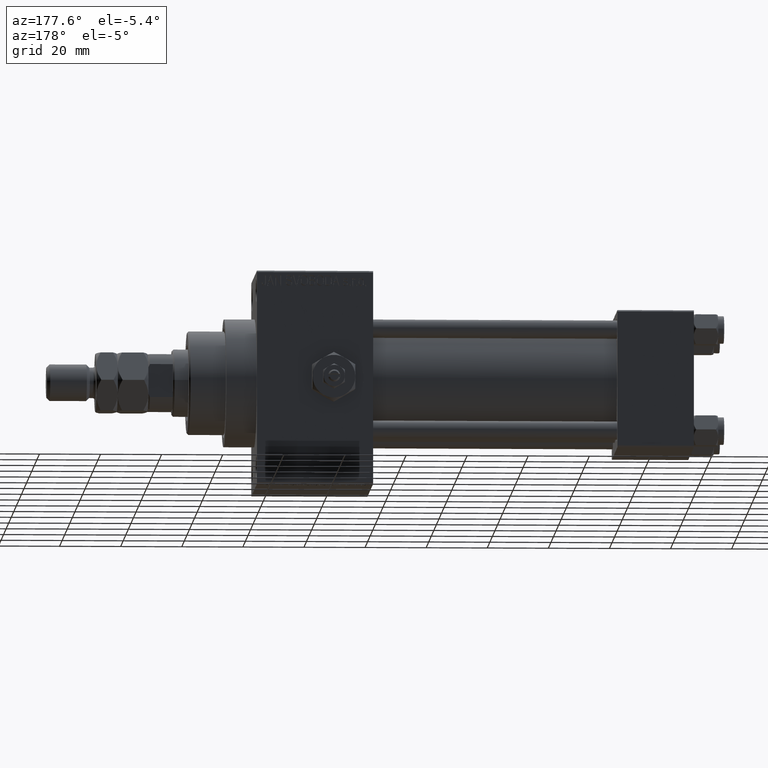
[diagram: clean part render]
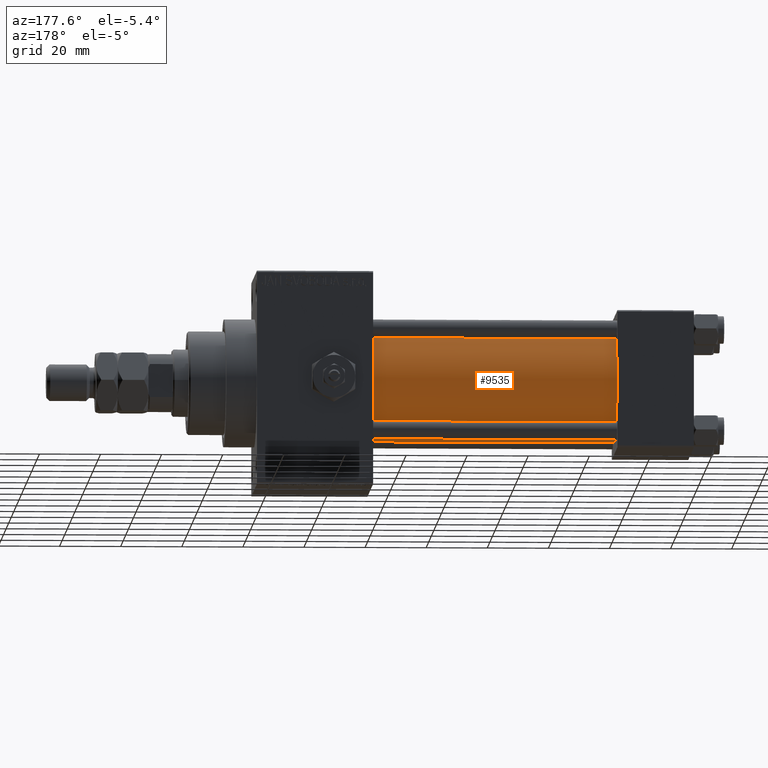
[diagram: same view with one face highlighted and labeled with its STEP entity id]
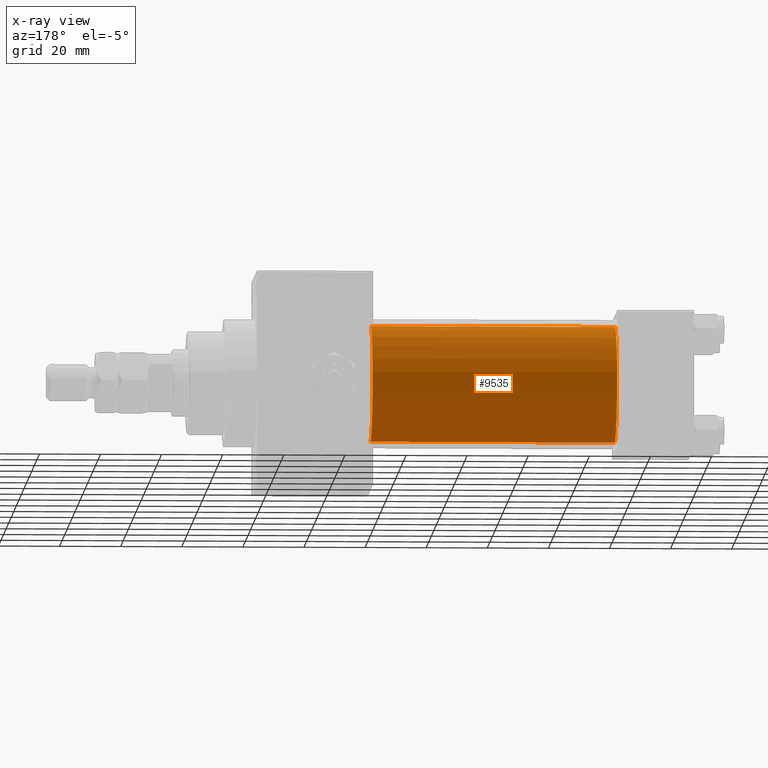
[diagram: x-ray of the same camera — body ghosted, the highlighted face saturated]
A machine part, auxiliary view. The second image highlights one B-rep face of the part: STEP entity #9535.
The next image is the same camera in x-ray: the body ghosted, the highlighted face saturated — about 0% of this face is hidden behind the body in this view.
In plain terms, the highlighted cylindrical surface (partial cylindrical patch) has radius 19 mm, axis along (-1, -0, -0).
Its self-contained STEP definition (entity closure, byte-faithful):
#435 = VECTOR ( 'NONE', #12409, 1000.000000000000000 ) ;
#1501 = CARTESIAN_POINT ( 'NONE',  ( 24.99999999999999289, -2.602085213965210642E-15, 0.000000000000000000 ) ) ;
#1876 = DIRECTION ( 'NONE',  ( -1.000000000000000000, -0.000000000000000000, -0.000000000000000000 ) ) ;
#2096 = VECTOR ( 'NONE', #46099, 1000.000000000000000 ) ;
#2854 = DIRECTION ( 'NONE',  ( 0.000000000000000000, 0.000000000000000000, -1.000000000000000000 ) ) ;
#4577 = VERTEX_POINT ( 'NONE', #18606 ) ;
#6730 = DIRECTION ( 'NONE',  ( 1.000000000000000000, -0.000000000000000000, 0.000000000000000000 ) ) ;
#7297 = ORIENTED_EDGE ( 'NONE', *, *, #9204, .T. ) ;
#8046 = AXIS2_PLACEMENT_3D ( 'NONE', #36677, #1876, #37427 ) ;
#9204 = EDGE_CURVE ( 'NONE', #34321, #42097, #13688, .T. ) ;
#9461 = EDGE_CURVE ( 'NONE', #4577, #32214, #46145, .T. ) ;
#9535 = ADVANCED_FACE ( 'NONE', ( #41730 ), #45284, .T. ) ;
#9698 = AXIS2_PLACEMENT_3D ( 'NONE', #33099, #18081, #2854 ) ;
#12409 = DIRECTION ( 'NONE',  ( -1.000000000000000000, -0.000000000000000000, -0.000000000000000000 ) ) ;
#13688 = CIRCLE ( 'NONE', #46107, 19.00000000000000000 ) ;
#14215 = ORIENTED_EDGE ( 'NONE', *, *, #25497, .F. ) ;
#14886 = EDGE_LOOP ( 'NONE', ( #40622, #44072, #7297, #14215 ) ) ;
#15473 = CARTESIAN_POINT ( 'NONE',  ( 105.0000000000000142, -2.602085213965210642E-15, 19.00000000000000000 ) ) ;
#18081 = DIRECTION ( 'NONE',  ( 1.000000000000000000, 0.000000000000000000, 0.000000000000000000 ) ) ;
#18606 = CARTESIAN_POINT ( 'NONE',  ( 105.0000000000000142, -2.752562955852396712E-16, -19.00000000000000000 ) ) ;
#19283 = LINE ( 'NONE', #15473, #435 ) ;
#20944 = CARTESIAN_POINT ( 'NONE',  ( 24.99999999999999289, -2.602085213965210642E-15, 19.00000000000000000 ) ) ;
#22468 = CARTESIAN_POINT ( 'NONE',  ( 105.0000000000000142, -2.752562955852396712E-16, -19.00000000000000000 ) ) ;
#25497 = EDGE_CURVE ( 'NONE', #32214, #42097, #19283, .T. ) ;
#26278 = DIRECTION ( 'NONE',  ( 0.000000000000000000, 0.000000000000000000, 1.000000000000000000 ) ) ;
#26920 = CARTESIAN_POINT ( 'NONE',  ( 105.0000000000000142, -2.602085213965210642E-15, 19.00000000000000000 ) ) ;
#30594 = LINE ( 'NONE', #22468, #2096 ) ;
#30624 = EDGE_CURVE ( 'NONE', #4577, #34321, #30594, .T. ) ;
#32214 = VERTEX_POINT ( 'NONE', #26920 ) ;
#33099 = CARTESIAN_POINT ( 'NONE',  ( 105.0000000000000142, -2.602085213965210642E-15, 0.000000000000000000 ) ) ;
#34321 = VERTEX_POINT ( 'NONE', #39268 ) ;
#36677 = CARTESIAN_POINT ( 'NONE',  ( 105.0000000000000142, -2.602085213965210642E-15, 0.000000000000000000 ) ) ;
#37427 = DIRECTION ( 'NONE',  ( 0.000000000000000000, 0.000000000000000000, 1.000000000000000000 ) ) ;
#39268 = CARTESIAN_POINT ( 'NONE',  ( 24.99999999999999289, -2.752562955852396712E-16, -19.00000000000000000 ) ) ;
#40622 = ORIENTED_EDGE ( 'NONE', *, *, #9461, .F. ) ;
#41730 = FACE_OUTER_BOUND ( 'NONE', #14886, .T. ) ;
#42097 = VERTEX_POINT ( 'NONE', #20944 ) ;
#44072 = ORIENTED_EDGE ( 'NONE', *, *, #30624, .T. ) ;
#45284 = CYLINDRICAL_SURFACE ( 'NONE', #8046, 19.00000000000000000 ) ;
#46099 = DIRECTION ( 'NONE',  ( -1.000000000000000000, -0.000000000000000000, -0.000000000000000000 ) ) ;
#46107 = AXIS2_PLACEMENT_3D ( 'NONE', #1501, #6730, #26278 ) ;
#46145 = CIRCLE ( 'NONE', #9698, 19.00000000000000000 ) ;